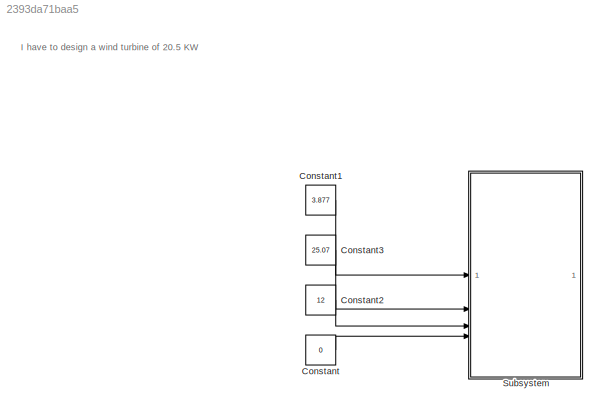
MODEL slx_2393da71baa5
KIND model
CONFIG AbsTol = auto
CONFIG EnableMultiTasking = off
CONFIG FixedStep = auto
CONFIG MaxStep = auto
CONFIG MinStep = auto
CONFIG RelTol = 1e-3
CONFIG SampleTimeConstraint = Unconstrained
CONFIG SolverName = VariableStepAuto
CONFIG StartTime = 0.0
CONFIG StopTime = 10.0
BLOCK [Constant] Constant
  Value = 0
BLOCK [Constant] Constant1
  Value = 3.877
BLOCK [Constant] Constant2
  Value = 12
BLOCK [Constant] Constant3
  Value = 25.07
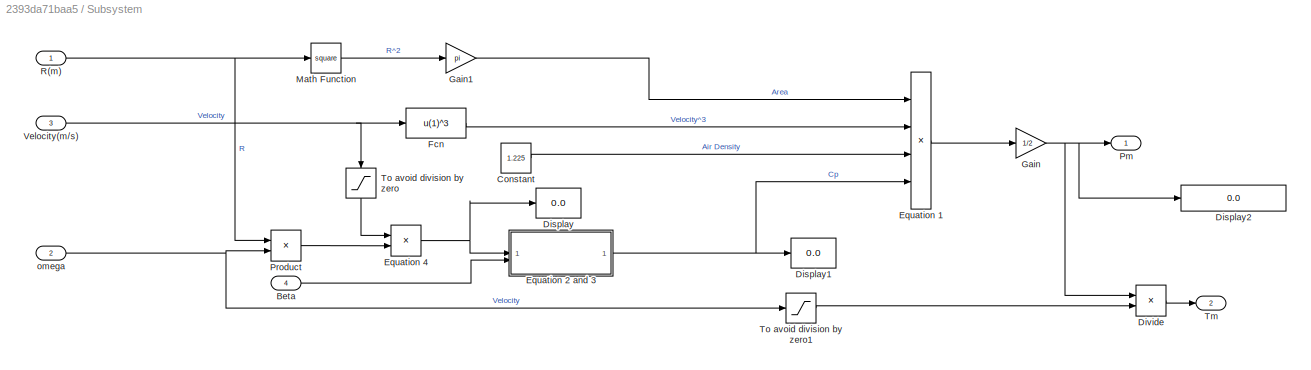
BLOCK [SubSystem] Subsystem
BLOCK [Inport] Subsystem/Beta
  Port = 4
BLOCK [Constant] Subsystem/Constant
  Value = 1.225
BLOCK [Display] Subsystem/Display
  Decimation = 1
BLOCK [Display] Subsystem/Display1
  Decimation = 1
BLOCK [Display] Subsystem/Display2
  Decimation = 1
  Format = decimal (Stored Integer)
BLOCK [Product] Subsystem/Divide
  Inputs = */
BLOCK [Product] Subsystem/Equation 1
  Inputs = 4
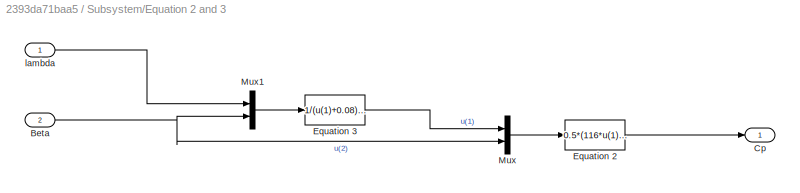
BLOCK [SubSystem] Subsystem/Equation 2 and 3
BLOCK [Inport] Subsystem/Equation 2 and 3/Beta
  Port = 2
BLOCK [Outport] Subsystem/Equation 2 and 3/Cp
BLOCK [Fcn] Subsystem/Equation 2 and 3/Equation 2
  Expr = 0.5*(116*u(1) - 0.4*u(2)-5)*exp(-21*u(1))
BLOCK [Fcn] Subsystem/Equation 2 and 3/Equation 3
  Expr = 1/(u(1)+0.08)-0.035/(1+u(2)^3)
BLOCK [Mux] Subsystem/Equation 2 and 3/Mux
  DisplayOption = bar
  Inputs = 2
BLOCK [Mux] Subsystem/Equation 2 and 3/Mux1
  DisplayOption = bar
  Inputs = 2
BLOCK [Inport] Subsystem/Equation 2 and 3/lambda
BLOCK [Product] Subsystem/Equation 4
  Inputs = /*
BLOCK [Fcn] Subsystem/Fcn
  Expr = u(1)^3
BLOCK [Gain] Subsystem/Gain
  Gain = 1/2
BLOCK [Gain] Subsystem/Gain1
  Gain = pi
BLOCK [Math] Subsystem/Math Function
  Operator = square
BLOCK [Outport] Subsystem/Pm
BLOCK [Product] Subsystem/Product
BLOCK [Inport] Subsystem/R(m)
BLOCK [Outport] Subsystem/Tm
  Port = 2
BLOCK [Saturate] Subsystem/To avoid division by zero
  LowerLimit = 1e-6
  NameLocation = right
  UpperLimit = inf
BLOCK [Saturate] Subsystem/To avoid division by zero1
  LowerLimit = 1e-6
  NameLocation = top
  UpperLimit = 1e6
BLOCK [Inport] Subsystem/Velocity(m//s)
  Port = 3
BLOCK [Inport] Subsystem/omega
  Port = 2
ANNOTATION (root): I have to design a wind turbine of 20.5 KW
LINE Constant1:1 -> Subsystem:1
LINE Constant2:1 -> Subsystem:3
LINE Constant3:1 -> Subsystem:2
LINE Constant:1 -> Subsystem:4
LINE Subsystem/Beta:1 -> Subsystem/Equation 2 and 3:2
LINE Subsystem/Constant:1 -> Subsystem/Equation 1:3
LINE Subsystem/Divide:1 -> Subsystem/Tm:1
LINE Subsystem/Equation 1:1 -> Subsystem/Gain:1
NET Subsystem/Equation 2 and 3/Beta:1 -> Subsystem/Equation 2 and 3/Mux1:2, Subsystem/Equation 2 and 3/Mux:2
LINE Subsystem/Equation 2 and 3/Equation 2:1 -> Subsystem/Equation 2 and 3/Cp:1
LINE Subsystem/Equation 2 and 3/Equation 3:1 -> Subsystem/Equation 2 and 3/Mux:1
LINE Subsystem/Equation 2 and 3/Mux1:1 -> Subsystem/Equation 2 and 3/Equation 3:1
LINE Subsystem/Equation 2 and 3/Mux:1 -> Subsystem/Equation 2 and 3/Equation 2:1
LINE Subsystem/Equation 2 and 3/lambda:1 -> Subsystem/Equation 2 and 3/Mux1:1
NET Subsystem/Equation 2 and 3:1 -> Subsystem/Display1:1, Subsystem/Equation 1:4
NET Subsystem/Equation 4:1 -> Subsystem/Display:1, Subsystem/Equation 2 and 3:1
LINE Subsystem/Fcn:1 -> Subsystem/Equation 1:2
LINE Subsystem/Gain1:1 -> Subsystem/Equation 1:1
NET Subsystem/Gain:1 -> Subsystem/Display2:1, Subsystem/Divide:1, Subsystem/Pm:1
LINE Subsystem/Math Function:1 -> Subsystem/Gain1:1
LINE Subsystem/Product:1 -> Subsystem/Equation 4:2
NET Subsystem/R(m):1 -> Subsystem/Math Function:1, Subsystem/Product:1
LINE Subsystem/To avoid division by zero1:1 -> Subsystem/Divide:2
LINE Subsystem/To avoid division by zero:1 -> Subsystem/Equation 4:1
NET Subsystem/Velocity(m//s):1 -> Subsystem/Fcn:1, Subsystem/To avoid division by zero:1
NET Subsystem/omega:1 -> Subsystem/Product:2, Subsystem/To avoid division by zero1:1
note: NET lines group one-source signal fan-out (src -> all destinations, sorted); 1:1 wires keep LINE
